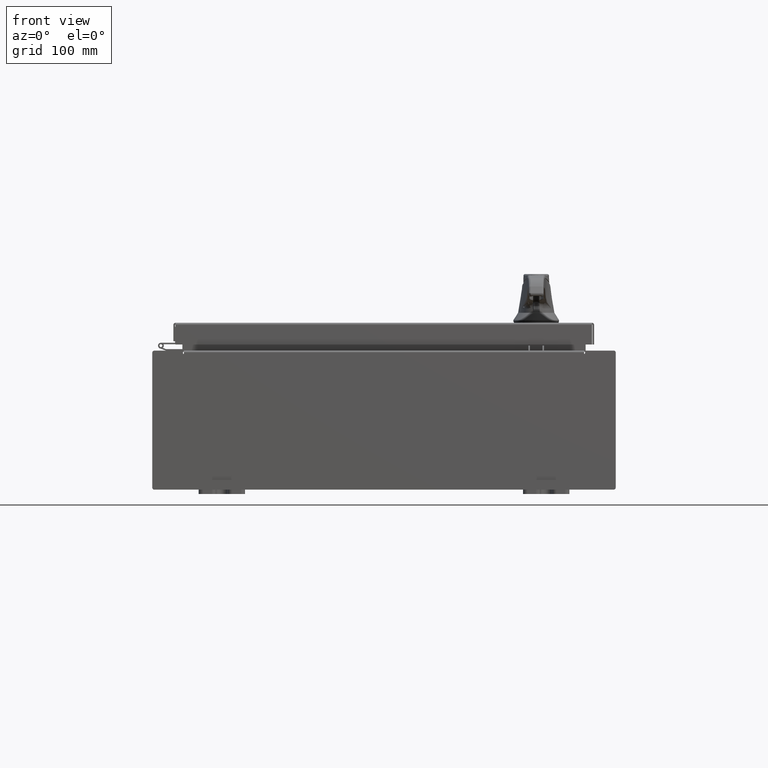
[diagram: clean part render]
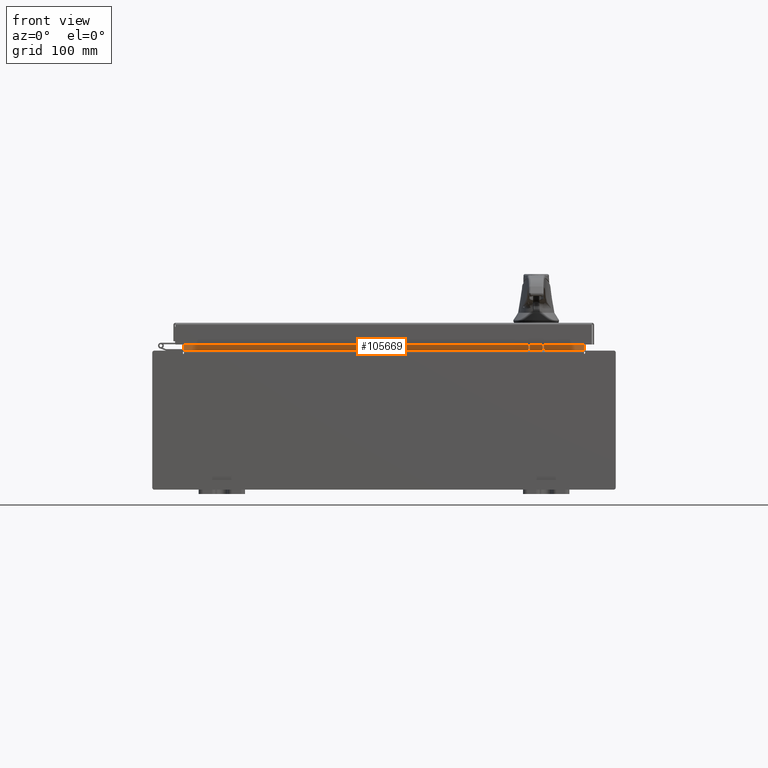
[diagram: same view with one face highlighted and labeled with its STEP entity id]
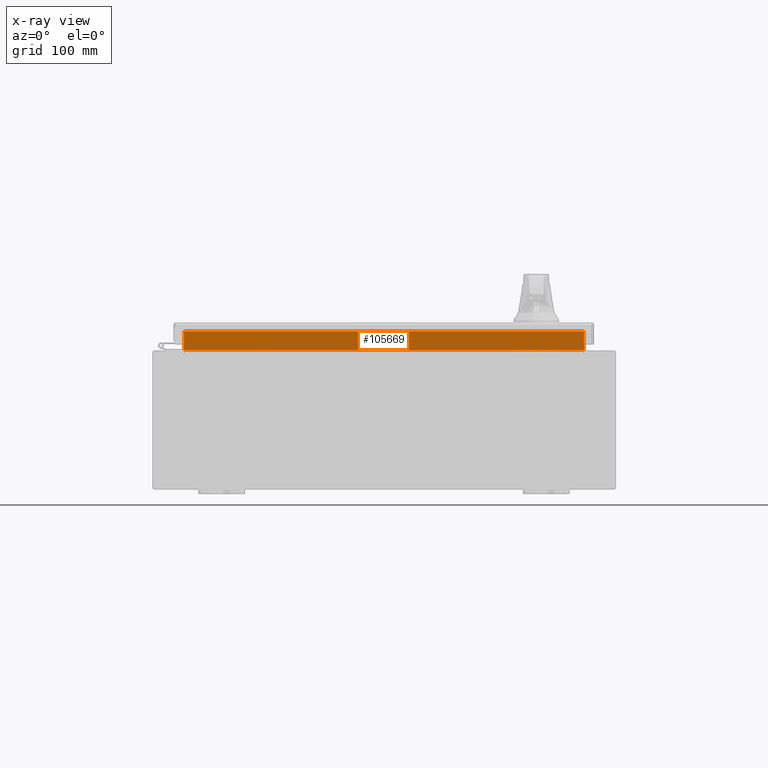
[diagram: x-ray of the same camera — body ghosted, the highlighted face saturated]
A machine part, front view. The second image highlights one B-rep face of the part: STEP entity #105669.
The next image is the same camera in x-ray: the body ghosted, the highlighted face saturated — about 0% of this face is hidden behind the body in this view.
In plain terms, the highlighted planar face has unit normal (0, -1, 0).
Its self-contained STEP definition (entity closure, byte-faithful):
#36 = VECTOR ( 'NONE', #24410, 39.37007874015748100 ) ;
#3416 = VECTOR ( 'NONE', #40400, 39.37007874015748100 ) ;
#5355 = CARTESIAN_POINT ( 'NONE',  ( -8.637200000000000000, -1.300300000000000000, 3.837600000000005000 ) ) ;
#5630 = CARTESIAN_POINT ( 'NONE',  ( 8.637200000000000000, -1.300299999999999800, 3.837600000000005000 ) ) ;
#8206 = DIRECTION ( 'NONE',  ( 0.0000000000000000000, -0.0000000000000000000, 1.000000000000000000 ) ) ;
#10187 = VERTEX_POINT ( 'NONE', #93900 ) ;
#12671 = CARTESIAN_POINT ( 'NONE',  ( -8.637200000000000000, -1.300299999999999800, 3.013000000000005200 ) ) ;
#15384 = VECTOR ( 'NONE', #21552, 39.37007874015748100 ) ;
#21552 = DIRECTION ( 'NONE',  ( 1.000000000000000000, 0.0000000000000000000, -6.325772226333218300E-017 ) ) ;
#21874 = VERTEX_POINT ( 'NONE', #5355 ) ;
#24410 = DIRECTION ( 'NONE',  ( -1.000000000000000000, -0.0000000000000000000, -0.0000000000000000000 ) ) ;
#24835 = DIRECTION ( 'NONE',  ( 0.0000000000000000000, 1.000000000000000000, 0.0000000000000000000 ) ) ;
#27443 = VERTEX_POINT ( 'NONE', #5630 ) ;
#28509 = LINE ( 'NONE', #49579, #3416 ) ;
#34020 = EDGE_LOOP ( 'NONE', ( #79571, #92756, #44791, #34969 ) ) ;
#34969 = ORIENTED_EDGE ( 'NONE', *, *, #96084, .F. ) ;
#40400 = DIRECTION ( 'NONE',  ( -0.0000000000000000000, -0.0000000000000000000, -1.000000000000000000 ) ) ;
#41354 = CARTESIAN_POINT ( 'NONE',  ( 8.637200000000000000, -1.300300000000000000, 3.837600000000005000 ) ) ;
#41784 = PLANE ( 'NONE',  #70182 ) ;
#44791 = ORIENTED_EDGE ( 'NONE', *, *, #107522, .F. ) ;
#47518 = LINE ( 'NONE', #41354, #36 ) ;
#49579 = CARTESIAN_POINT ( 'NONE',  ( -8.637200000000000000, -1.300299999999999800, 3.000000000000005300 ) ) ;
#49982 = EDGE_CURVE ( 'NONE', #27443, #21874, #47518, .T. ) ;
#57798 = VECTOR ( 'NONE', #84567, 39.37007874015748100 ) ;
#60161 = CARTESIAN_POINT ( 'NONE',  ( -8.637200000000000000, -1.300299999999999800, 3.013000000000004800 ) ) ;
#66316 = VERTEX_POINT ( 'NONE', #60161 ) ;
#70182 = AXIS2_PLACEMENT_3D ( 'NONE', #109261, #24835, #8206 ) ;
#74773 = LINE ( 'NONE', #12671, #15384 ) ;
#75686 = EDGE_CURVE ( 'NONE', #21874, #66316, #28509, .T. ) ;
#76446 = CARTESIAN_POINT ( 'NONE',  ( 8.637200000000000000, -1.300299999999999800, 3.925300000000005300 ) ) ;
#79571 = ORIENTED_EDGE ( 'NONE', *, *, #75686, .F. ) ;
#84567 = DIRECTION ( 'NONE',  ( -0.0000000000000000000, -0.0000000000000000000, 1.000000000000000000 ) ) ;
#92756 = ORIENTED_EDGE ( 'NONE', *, *, #49982, .F. ) ;
#93900 = CARTESIAN_POINT ( 'NONE',  ( 8.637199999999996400, -1.300299999999999800, 3.013000000000004800 ) ) ;
#96084 = EDGE_CURVE ( 'NONE', #66316, #10187, #74773, .T. ) ;
#100093 = FACE_OUTER_BOUND ( 'NONE', #34020, .T. ) ;
#102682 = LINE ( 'NONE', #76446, #57798 ) ;
#105669 = ADVANCED_FACE ( 'NONE', ( #100093 ), #41784, .T. ) ;
#107522 = EDGE_CURVE ( 'NONE', #10187, #27443, #102682, .T. ) ;
#109261 = CARTESIAN_POINT ( 'NONE',  ( 0.0000000000000000000, -1.300299999999999800, 0.0000000000000000000 ) ) ;